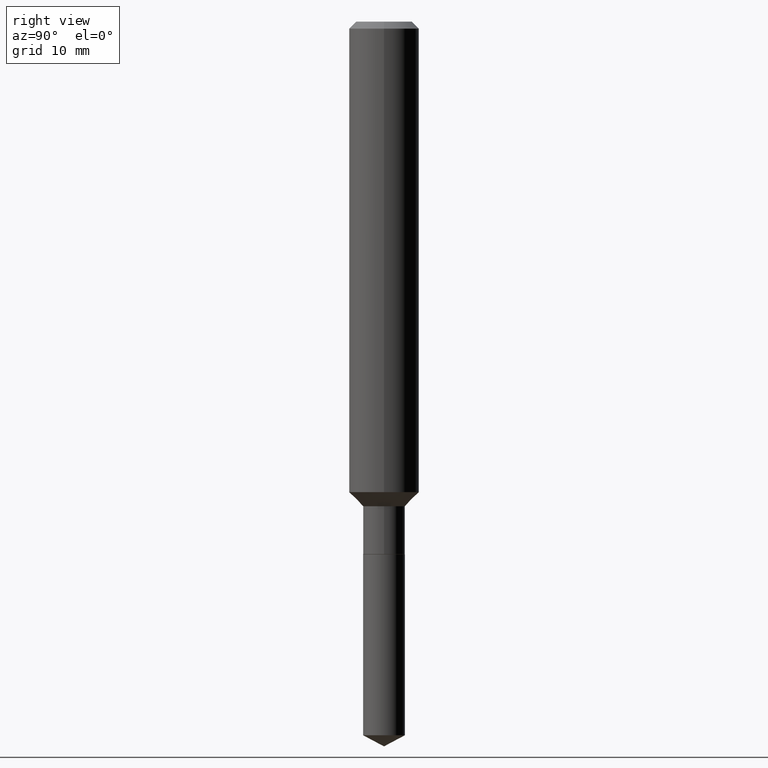
[diagram: clean part render]
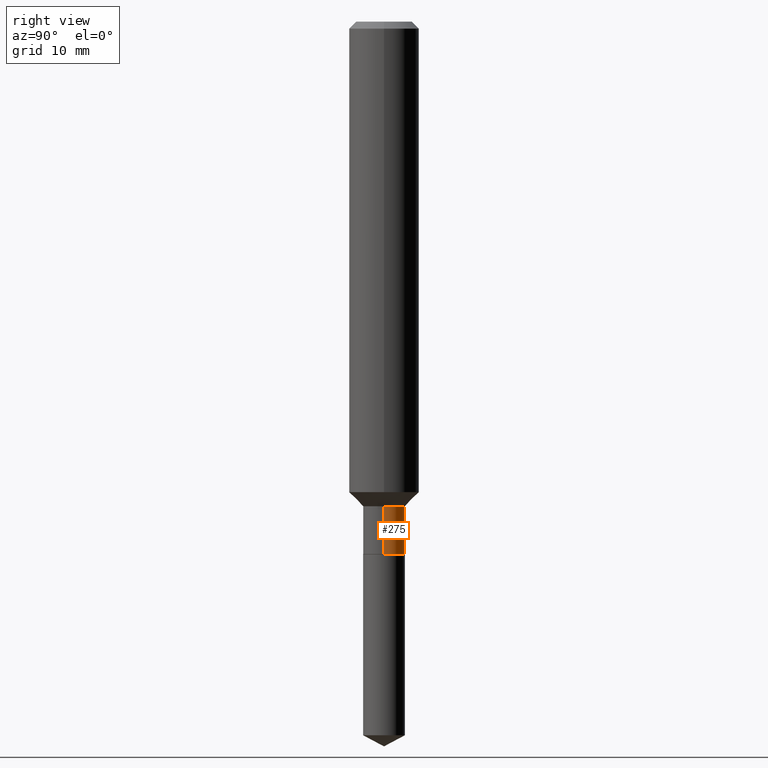
[diagram: same view with one face highlighted and labeled with its STEP entity id]
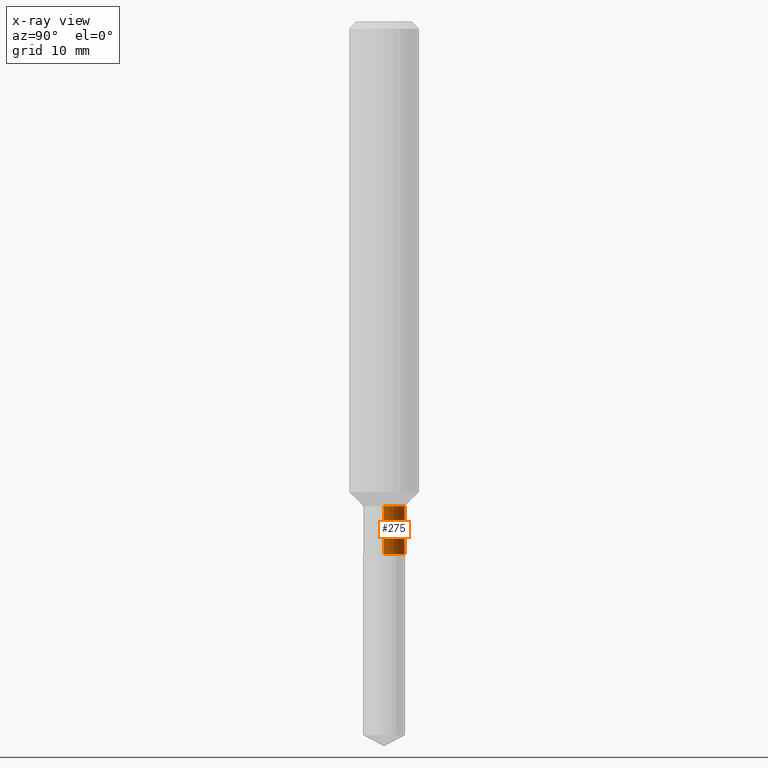
[diagram: x-ray of the same camera — body ghosted, the highlighted face saturated]
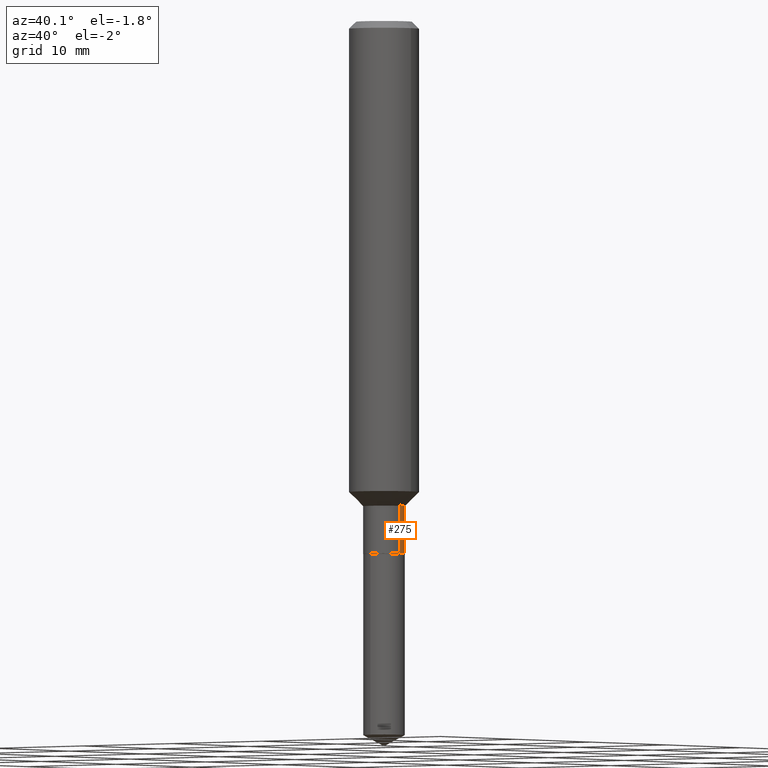
[diagram: same view with one face highlighted and labeled with its STEP entity id]
A machine part, right view. The second image highlights one B-rep face of the part: STEP entity #275.
The next image is the same camera in x-ray: the body ghosted, the highlighted face saturated — about 0% of this face is hidden behind the body in this view.
A second angle (auxiliary view) of the same face is appended — the face is thin or edge-on in the first view.
In plain terms, the highlighted cylindrical surface (edge-blend (fillet) strip) has radius 1.7856 mm, axis along (-0, 0, 1).
Its self-contained STEP definition (entity closure, byte-faithful):
#21 = ORIENTED_EDGE ( 'NONE', *, *, #374, .F. ) ;
#23 = DIRECTION ( 'NONE',  ( -2.445468806185136597E-29, 3.491481338843145583E-15, 1.000000000000000000 ) ) ;
#35 = VECTOR ( 'NONE', #92, 39.37007874015748143 ) ;
#37 = VERTEX_POINT ( 'NONE', #140 ) ;
#41 = AXIS2_PLACEMENT_3D ( 'NONE', #473, #420, #192 ) ;
#44 = EDGE_CURVE ( 'NONE', #142, #37, #209, .T. ) ;
#59 = DIRECTION ( 'NONE',  ( 1.000000000000000000, -6.982962677686266711E-15, 4.876176775795935232E-29 ) ) ;
#83 = CARTESIAN_POINT ( 'NONE',  ( -0.07029999999999998750, 4.995115432393503418E-16, -3.458011368449198169E-30 ) ) ;
#92 = DIRECTION ( 'NONE',  ( -2.445468806185136877E-29, 3.491481338843145188E-15, 1.000000000000000000 ) ) ;
#94 = CYLINDRICAL_SURFACE ( 'NONE', #185, 0.07029999999999998750 ) ;
#108 = ORIENTED_EDGE ( 'NONE', *, *, #44, .F. ) ;
#127 = FACE_OUTER_BOUND ( 'NONE', #132, .T. ) ;
#132 = EDGE_LOOP ( 'NONE', ( #407, #295, #21, #108 ) ) ;
#140 = CARTESIAN_POINT ( 'NONE',  ( 0.07029999999999998750, -6.190396413768896991E-15, -1.632400000000000295 ) ) ;
#142 = VERTEX_POINT ( 'NONE', #146 ) ;
#146 = CARTESIAN_POINT ( 'NONE',  ( 0.07029999999999998750, -6.753223205590411040E-15, -1.793600000000000305 ) ) ;
#176 = CIRCLE ( 'NONE', #490, 0.07029999999999998750 ) ;
#185 = AXIS2_PLACEMENT_3D ( 'NONE', #276, #428, #59 ) ;
#187 = DIRECTION ( 'NONE',  ( -2.445468806185136877E-29, 3.491481338843145188E-15, 1.000000000000000000 ) ) ;
#192 = DIRECTION ( 'NONE',  ( 1.000000000000000000, -6.982962677686266711E-15, 0.000000000000000000 ) ) ;
#196 = LINE ( 'NONE', #83, #35 ) ;
#204 = DIRECTION ( 'NONE',  ( 1.000000000000000000, -6.982962677686266711E-15, 0.000000000000000000 ) ) ;
#209 = LINE ( 'NONE', #452, #305 ) ;
#239 = EDGE_CURVE ( 'NONE', #142, #478, #442, .T. ) ;
#275 = ADVANCED_FACE ( 'NONE', ( #127 ), #94, .T. ) ;
#276 = CARTESIAN_POINT ( 'NONE',  ( 0.000000000000000000, 0.000000000000000000, 0.000000000000000000 ) ) ;
#281 = CARTESIAN_POINT ( 'NONE',  ( -0.07030000000000000138, -5.481395990198959614E-15, -1.793600000000000305 ) ) ;
#294 = EDGE_CURVE ( 'NONE', #478, #365, #196, .T. ) ;
#295 = ORIENTED_EDGE ( 'NONE', *, *, #294, .T. ) ;
#305 = VECTOR ( 'NONE', #187, 39.37007874015748143 ) ;
#316 = CARTESIAN_POINT ( 'NONE',  ( -0.07029999999999998750, -5.481395990198959614E-15, -1.632400000000000295 ) ) ;
#365 = VERTEX_POINT ( 'NONE', #316 ) ;
#374 = EDGE_CURVE ( 'NONE', #37, #365, #176, .T. ) ;
#407 = ORIENTED_EDGE ( 'NONE', *, *, #239, .T. ) ;
#420 = DIRECTION ( 'NONE',  ( -2.445468806185136597E-29, 3.491481338843145583E-15, 1.000000000000000000 ) ) ;
#428 = DIRECTION ( 'NONE',  ( -2.445468806185136597E-29, 3.491481338843145583E-15, 1.000000000000000000 ) ) ;
#442 = CIRCLE ( 'NONE', #41, 0.07029999999999998750 ) ;
#452 = CARTESIAN_POINT ( 'NONE',  ( 0.07029999999999998750, -4.909022762413444543E-16, 3.427952273384541736E-30 ) ) ;
#472 = CARTESIAN_POINT ( 'NONE',  ( 3.991983279216617405E-29, -5.699494137527552043E-15, -1.632400000000000295 ) ) ;
#473 = CARTESIAN_POINT ( 'NONE',  ( 4.386192850773661378E-29, -6.262320929349066882E-15, -1.793600000000000305 ) ) ;
#478 = VERTEX_POINT ( 'NONE', #281 ) ;
#490 = AXIS2_PLACEMENT_3D ( 'NONE', #472, #23, #204 ) ;